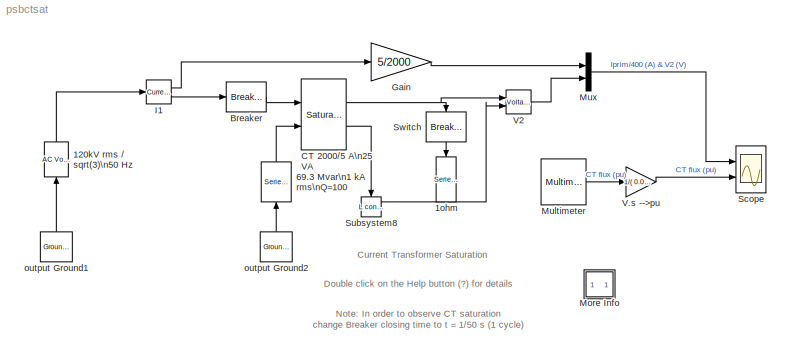
MODEL psbctsat
KIND model
CONFIG InitFcn = powericon('psbinitsys',bdroot);
BLOCK [Reference] 120kV rms // sqrt(3)\n50 Hz  REF=powerlib2/Electrical\nSources/AC Voltage Source
  A = 120e3/sqrt(3)*sqrt(2)
  Description = source block
  F = 50
  P = 0
  PSBOutputType = 1
  Ports = [1, 1]
  SourceBlock = powerlib2/Electrical\nSources/AC Voltage Source
  SourceType = AC Voltage Source
  Tag = PoWeRsYsTeMbLoCk
  mesure = None
  stime = 0
BLOCK [Reference] 1ohm  REF=powerlib2/Elements/Series RLC Branch
  PSBOutputType = 1
  Ports = [1, 1]
  SourceBlock = powerlib2/Elements/Series RLC Branch
  SourceType = Series RLC Branch
  Tag = PoWeRsYsTeMbLoCk
  a = 1
  b = 0
  c = inf
  mesure = None
BLOCK [Reference] 69.3 Mvar\n1 kA rms\nQ=100  REF=powerlib2/Elements/Series RLC Branch
  PSBOutputType = 1
  Ports = [1, 1]
  SourceBlock = powerlib2/Elements/Series RLC Branch
  SourceType = Series RLC Branch
  Tag = PoWeRsYsTeMbLoCk
  a = 69.3e3/1e3/100
  b = 69.3e3/1e3/(2*pi*50)
  c = inf
  mesure = None
BLOCK [Reference] Breaker  REF=powerlib2/Elements/Breaker
  PSBOutputType = 1
  Ports = [1, 1]
  SourceBlock = powerlib2/Elements/Breaker
  SourceType = Breaker
  Tag = PoWeRsYsTeMbLoCk
  Ts = 0
  a = 0.01
  c = 0
  comext = off
  cs = inf
  mesure = None
  rs = 1e6
  times = [ 1.25/50]
BLOCK [Reference] CT 2000//5 A\n25 VA  REF=powerlib2/Elements/Saturable Transformer
  H = off
  Initialslope = +1
  PSBOutputType = 1111
  Ports = [2, 2]
  SourceBlock = powerlib2/Elements/Saturable Transformer
  SourceType = Saturable Transformer
  Tag = PoWeRsYsTeMbLoCk
  a = [25 50]
  b = [5*5/2000 0.001 0.04]
  c = [5 0.001 0.04 ]
  d = [5 0.001 0.04 ]
  e = [0 0 ; 0.01 10 ; 1 10.5]
  f = [100]
  matfile = 'hysteresis'
  mesure = Flux and magnetization current ( Imag )
  w3check = off
BLOCK [Gain] Gain
  Gain = 5/2000
BLOCK [Reference] I1  REF=powerlib2/Measurements/Current Measurement
  OutputType = Magnitude
  PSBOutputType = 01
  PSBequivalent = 0
  PhasorSimulation = off
  Ports = [1, 2]
  SourceBlock = powerlib2/Measurements/Current Measurement
  SourceType = Current Measurement
  Tag = PoWeRsYsTeMmEaSuReMeNt
BLOCK [SubSystem] More Info
  MaskDisplay = disp('?')
  MaskIconFrame = on
  MaskIconOpaque = on
  MaskIconRotate = none
  MaskIconUnits = autoscale
  MinAlgLoopOccurrences = off
  Ports = []
  RTWSystemCode = Auto
  TreatAsAtomicUnit = off
BLOCK [Reference] Multimeter  REF=powerlib2/Measurements/Multimeter
  AxesSetting = [0,0.1,-100,100]
  Display = 0
  Gain = 1
  L = 2
  OutputType = Magnitude
  PSBOutputType = 1
  PSBequivalent = 0
  PhasorSimulation = off
  Ports = [0, 1]
  SavedBlockNames = {}
  SourceBlock = powerlib2/Measurements/Multimeter
  SourceType = MultimeterPSB
  Tag = PoWeRsYsTeMmEaSuReMeNt
  sel = 2
  yselected = {'Flux: CT 2000//5 A 25 VA'};
BLOCK [Mux] Mux
  DisplayOption = bar
  Inputs = 2
  Ports = [2, 1]
BLOCK [Scope] Scope
  DataFormat = StructureWithTime
  NumInputPorts = 2
  Ports = [2]
  TimeRange = 0.2
  YMax = 4~1
  YMin = -4~-0.4
BLOCK [Reference] Subsystem8  REF=powerlib2/Connectors/L connector
  Ports = [1, 0, 1]
  SourceBlock = powerlib2/Connectors/L connector
  SourceType = Bus Bar
  Tag = PoWeRsYsTeMbLoCk
BLOCK [Reference] Switch  REF=powerlib2/Elements/Breaker
  PSBOutputType = 1
  Ports = [1, 1]
  SourceBlock = powerlib2/Elements/Breaker
  SourceType = Breaker
  Tag = PoWeRsYsTeMbLoCk
  Ts = 0
  a = 0.001
  c = 1
  comext = off
  cs = inf
  mesure = None
  rs = 1e6
  times = [  99 ]
BLOCK [Gain] V.s -->pu
  Gain = 1/( 0.0125*sqrt(2)/(2*pi*50))
BLOCK [Reference] V2  REF=powerlib2/Measurements/Voltage Measurement
  OutputType = Magnitude
  PSBOutputType = 0
  PSBequivalent = 0
  PhasorSimulation = off
  Ports = [2, 1]
  SourceBlock = powerlib2/Measurements/Voltage Measurement
  SourceType = Voltage Measurement
  Tag = PoWeRsYsTeMmEaSuReMeNt
BLOCK [Reference] output Ground1  REF=powerlib2/Connectors/Ground (output)
  PSBOutputType = 1
  Ports = [0, 1]
  SourceBlock = powerlib2/Connectors/Ground (output)
  SourceType = Ground
  Tag = PoWeRsYsTeMbLoCk
BLOCK [Reference] output Ground2  REF=powerlib2/Connectors/Ground (output)
  PSBOutputType = 1
  Ports = [0, 1]
  SourceBlock = powerlib2/Connectors/Ground (output)
  SourceType = Ground
  Tag = PoWeRsYsTeMbLoCk
ANNOTATION (root): Current Transformer Saturation
ANNOTATION (root): Double click on the Help button (?) for details
ANNOTATION (root): Note: In order to observe CT saturation\nchange Breaker closing time to t = 1/50 s (1 cycle)
ANNOTATION More Info: 1. Normal operation
ANNOTATION More Info: 2. CT saturation due to current asymmetry
ANNOTATION More Info: 3. Overvoltage due to CT secondary opening
ANNOTATION More Info: A current transformer (CT) is used to measure current in a shunt inductor connected on a 120 kV network.\nThe CT is rated 2000 A / 5 A , 5 VA. The primary winding which consists of a single turn passing through the\nCT toroidal core is connected in series with the shunt inductor rated 69.3 Mvar, 69.3 kV (120kV/sqrt(3)) , 1 kA rms. \nThe secondary winding consisting of 1*2000/5 = 400 turns is short...<+944ch>
ANNOTATION More Info: Circuit Description
ANNOTATION More Info: Demonstration
ANNOTATION More Info: G. Sybille (Hydro-Quebec)
ANNOTATION More Info: In this test , the breaker is closed at a peak of source voltage (t = 1.25 cycle). This switching produces no current asymmetry.\nStart the simulation and observe the CT primary current and secondary voltage (first tace of Scope block).\nAs expected the the CT current and voltage are sinusoidal and the measurement error due to CT resistance and leakage \nreactances is not significant. The flux con...<+72ch>
ANNOTATION More Info: Now, change the breaker closing time in order to close at a voltage zero crossing . Use t = 1/50 s. \nThis switching instant will now produce full current asymmetry in the shunt reactor. Restart the simulation.\nObserve that for the first 3 cycles, the flux stays lower than the saturation knee point (10 pu). The CT voltage output V2 \nthen follows the primary current. However, after 3 cycles, the ...<+126ch>
ANNOTATION More Info: Reprogram the primary breaker closing time at t = 1.25/50 s (no flux asymmetry) and change the secondary switch \nopening time to t = 0.1 s. Restart the simulation and observe the large overvoltage produced when the CT secondary is opened.\nThe flux has a square waveshape chopped at +10 and -10 pu. Large dphi/dt produced at flux inversion generates high \nvoltage spikes (250 V).
ANNOTATION More Info: This demonstration illustrates measurement distortion due to saturation of a current transformer (CT)
LINE 120kV rms // sqrt(3)\n50 Hz:1 -> I1:1
NET 1ohm:1 -> Subsystem8:enable, V2:2
LINE 69.3 Mvar\n1 kA rms\nQ=100:1 -> CT 2000//5 A\n25 VA:2
LINE Breaker:1 -> CT 2000//5 A\n25 VA:1
NET CT 2000//5 A\n25 VA:1 -> Switch:1, V2:1
LINE CT 2000//5 A\n25 VA:2 -> Subsystem8:1
LINE Gain:1 -> Mux:1
LINE I1:1 -> Gain:1
LINE I1:2 -> Breaker:1
LINE Multimeter:1 -> V.s -->pu:1
LINE Mux:1 -> Scope:1
LINE Switch:1 -> 1ohm:1
LINE V.s -->pu:1 -> Scope:2
LINE V2:1 -> Mux:2
LINE output Ground1:1 -> 120kV rms // sqrt(3)\n50 Hz:1
LINE output Ground2:1 -> 69.3 Mvar\n1 kA rms\nQ=100:1
note: NET lines group one-source signal fan-out (src -> all destinations, sorted); 1:1 wires keep LINE
